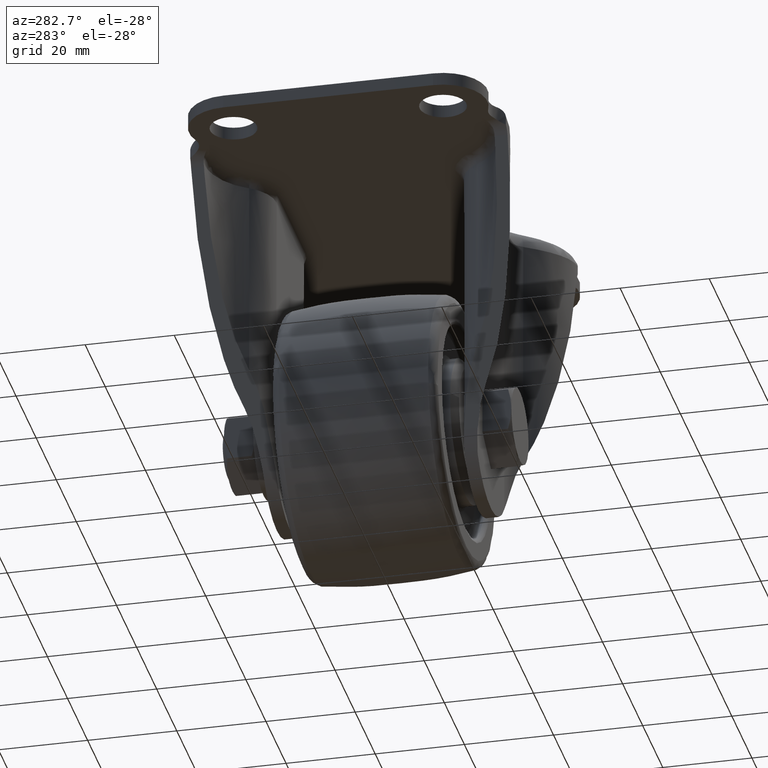
[diagram: clean part render]
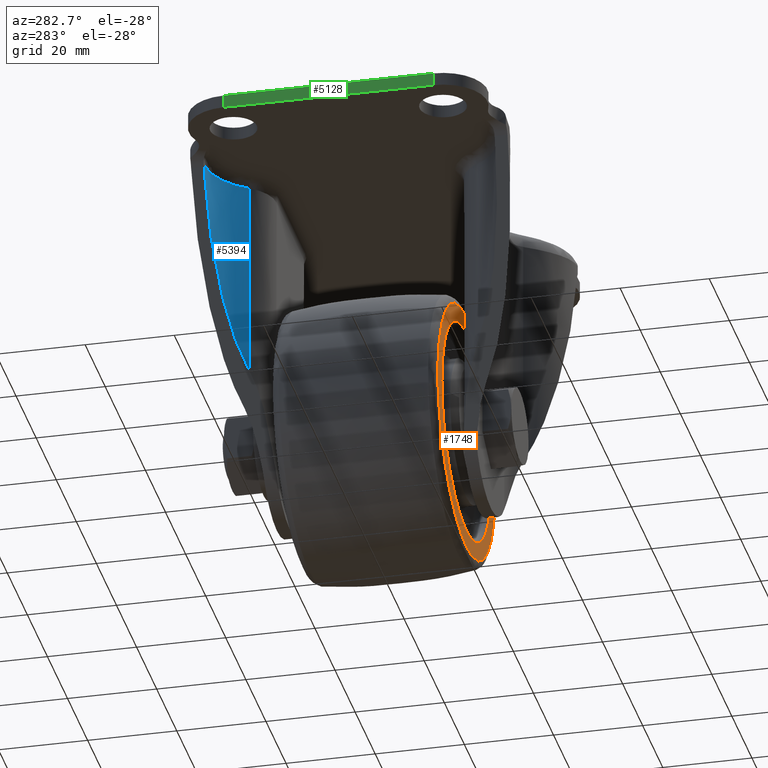
[diagram: same view with three faces highlighted in distinct colors, each labeled with its STEP entity id]
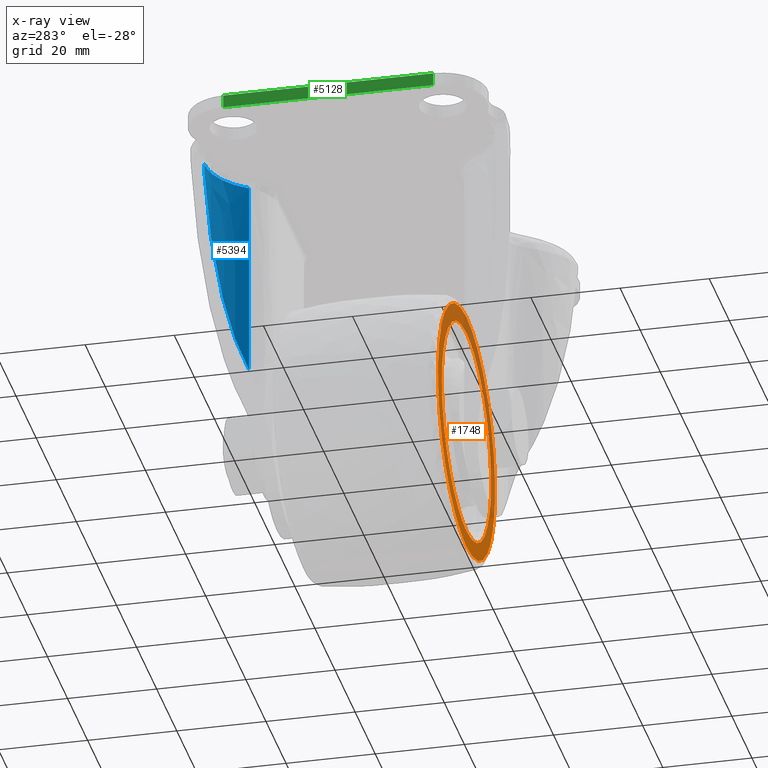
[diagram: x-ray of the same camera — body ghosted, the three highlighted faces saturated]
A machine part, auxiliary view with three faces highlighted in distinct colors.
The next image is the same camera in x-ray (body ghosted, the three faces saturated) — at least one of them is partly hidden behind the body in this view.
Their STEP definitions:

[orange] entity #1748 — the highlighted face is a freeform B-spline surface patch.
#1544=CARTESIAN_POINT('',(-28.250424796770758,-18.500000000000000,-62.708706460411733));
#1545=VERTEX_POINT('',#1544);
#1546=CARTESIAN_POINT('',(0.0,-18.500000000000000,-87.932034446078745));
#1547=VERTEX_POINT('',#1546);
#1548=CARTESIAN_POINT('',(-28.250424796770758,-18.500000000000004,-62.708706460411733));
#1549=CARTESIAN_POINT('',(-25.385508118814474,-18.500000000000007,-87.932034446493333));
#1550=CARTESIAN_POINT('',(0.0,-18.500000000000000,-87.932034446078745));
#1558=(BOUNDED_CURVE()B_SPLINE_CURVE(2,(#1548,#1549,#1550),.UNSPECIFIED.,.F.,.U.)B_SPLINE_CURVE_WITH_KNOTS((3,3),(0.769555763445048,1.0),.UNSPECIFIED.)CURVE()GEOMETRIC_REPRESENTATION_ITEM()RATIONAL_B_SPLINE_CURVE((0.957762333070122,0.730017783193646,1.0))REPRESENTATION_ITEM(''));
#1559=EDGE_CURVE('',#1545,#1547,#1558,.T.);
#1576=CARTESIAN_POINT('',(28.250424796770758,-18.500000000000000,-56.291225539588453));
#1577=VERTEX_POINT('',#1576);
#1591=CARTESIAN_POINT('',(0.0,-18.500000000000000,-87.932034446078745));
#1592=CARTESIAN_POINT('',(28.432068449337578,-18.500000000000000,-87.932034445708609));
#1593=CARTESIAN_POINT('',(28.432068452987622,-18.500000000000000,-59.499965999215377));
#1594=CARTESIAN_POINT('',(28.432068453194251,-18.500000000000000,-57.890454434599434));
#1595=CARTESIAN_POINT('',(28.250424796770758,-18.500000000000004,-56.291225539588453));
#1603=(BOUNDED_CURVE()B_SPLINE_CURVE(2,(#1591,#1592,#1593,#1594,#1595),.UNSPECIFIED.,.F.,.U.)B_SPLINE_CURVE_WITH_KNOTS((3,2,3),(0.0,0.250000000000000,0.269555763445048),.UNSPECIFIED.)CURVE()GEOMETRIC_REPRESENTATION_ITEM()RATIONAL_B_SPLINE_CURVE((1.0,0.707106781186548,1.0,0.977088997992902,0.957762333070122))REPRESENTATION_ITEM(''));
#1604=EDGE_CURVE('',#1547,#1577,#1603,.T.);
#1638=CARTESIAN_POINT('',(0.0,-18.500000000000000,-31.067897553921451));
#1639=VERTEX_POINT('',#1638);
#1640=CARTESIAN_POINT('',(0.0,-18.500000000000000,-31.067897553921451));
#1641=CARTESIAN_POINT('',(-28.432068449337578,-18.500000000000000,-31.067897554291605));
#1642=CARTESIAN_POINT('',(-28.432068452987622,-18.500000000000000,-59.499966000784838));
#1643=CARTESIAN_POINT('',(-28.432068453194248,-18.500000000000004,-61.109477565400773));
#1644=CARTESIAN_POINT('',(-28.250424796770758,-18.500000000000004,-62.708706460411733));
#1652=(BOUNDED_CURVE()B_SPLINE_CURVE(2,(#1640,#1641,#1642,#1643,#1644),.UNSPECIFIED.,.F.,.U.)B_SPLINE_CURVE_WITH_KNOTS((3,2,3),(0.500000000000000,0.750000000000000,0.769555763445048),.UNSPECIFIED.)CURVE()GEOMETRIC_REPRESENTATION_ITEM()RATIONAL_B_SPLINE_CURVE((1.0,0.707106781186548,1.0,0.977088997992902,0.957762333070122))REPRESENTATION_ITEM(''));
#1653=EDGE_CURVE('',#1639,#1545,#1652,.T.);
#1655=CARTESIAN_POINT('',(28.250424796770758,-18.500000000000004,-56.291225539588453));
#1656=CARTESIAN_POINT('',(25.385508118814442,-18.500000000000004,-31.067897553506871));
#1657=CARTESIAN_POINT('',(0.0,-18.500000000000000,-31.067897553921451));
#1665=(BOUNDED_CURVE()B_SPLINE_CURVE(2,(#1655,#1656,#1657),.UNSPECIFIED.,.F.,.U.)B_SPLINE_CURVE_WITH_KNOTS((3,3),(0.269555763445048,0.500000000000000),.UNSPECIFIED.)CURVE()GEOMETRIC_REPRESENTATION_ITEM()RATIONAL_B_SPLINE_CURVE((0.957762333070122,0.730017783193646,1.0))REPRESENTATION_ITEM(''));
#1666=EDGE_CURVE('',#1577,#1639,#1665,.T.);
#1675=CARTESIAN_POINT('',(-31.272420960481021,-18.500000000000000,-90.772397973628273));
#1676=CARTESIAN_POINT('',(-31.272420960481021,-18.500000000000000,-28.227532501156919));
#1677=CARTESIAN_POINT('',(31.272420960481011,-18.500000000000000,-90.772397973628273));
#1678=CARTESIAN_POINT('',(31.272420960481011,-18.500000000000000,-28.227532501156919));
#1679=B_SPLINE_SURFACE_WITH_KNOTS('',1,1,((#1675,#1677),(#1676,#1678)),.UNSPECIFIED.,.F.,.F.,.U.,(2,2),(2,2),(0.0,62.544865472471358),(0.0,62.544841920962028),.UNSPECIFIED.);
#1680=ORIENTED_EDGE('',*,*,#1604,.T.);
#1681=ORIENTED_EDGE('',*,*,#1666,.T.);
#1682=ORIENTED_EDGE('',*,*,#1653,.T.);
#1683=ORIENTED_EDGE('',*,*,#1559,.T.);
#1684=EDGE_LOOP('',(#1680,#1681,#1682,#1683));
#1685=FACE_OUTER_BOUND('',#1684,.T.);
#1686=CARTESIAN_POINT('',(0.0,-18.500000000000000,-34.999932000000200));
#1687=VERTEX_POINT('',#1686);
#1688=CARTESIAN_POINT('',(-24.500033999724689,-18.500000000000000,-59.499966000000100));
#1689=VERTEX_POINT('',#1688);
#1690=CARTESIAN_POINT('',(0.0,-18.500000000000000,-34.999932000000200));
#1691=CARTESIAN_POINT('',(-24.500033999862286,-18.499999999999996,-34.999932000000200));
#1692=CARTESIAN_POINT('',(-24.500033999724685,-18.500000000000004,-59.499966000000107));
#1700=(BOUNDED_CURVE()B_SPLINE_CURVE(2,(#1690,#1691,#1692),.UNSPECIFIED.,.F.,.U.)B_SPLINE_CURVE_WITH_KNOTS((3,3),(0.500000000000000,0.750000000000000),.UNSPECIFIED.)CURVE()GEOMETRIC_REPRESENTATION_ITEM()RATIONAL_B_SPLINE_CURVE((1.0,0.707106781186548,1.000000000000000))REPRESENTATION_ITEM(''));
#1701=EDGE_CURVE('',#1687,#1689,#1700,.T.);
#1702=ORIENTED_EDGE('',*,*,#1701,.F.);
#1703=CARTESIAN_POINT('',(24.500033999724689,-18.500000000000000,-59.499966000000100));
#1704=VERTEX_POINT('',#1703);
#1705=CARTESIAN_POINT('',(24.500033999724689,-18.500000000000000,-59.499966000000100));
#1706=CARTESIAN_POINT('',(24.500033999862289,-18.500000000000000,-34.999932000000207));
#1707=CARTESIAN_POINT('',(0.0,-18.500000000000000,-34.999932000000200));
#1715=(BOUNDED_CURVE()B_SPLINE_CURVE(2,(#1705,#1706,#1707),.UNSPECIFIED.,.F.,.U.)B_SPLINE_CURVE_WITH_KNOTS((3,3),(0.250000000000000,0.500000000000000),.UNSPECIFIED.)CURVE()GEOMETRIC_REPRESENTATION_ITEM()RATIONAL_B_SPLINE_CURVE((1.0,0.707106781186548,1.0))REPRESENTATION_ITEM(''));
#1716=EDGE_CURVE('',#1704,#1687,#1715,.T.);
#1717=ORIENTED_EDGE('',*,*,#1716,.F.);
#1718=CARTESIAN_POINT('',(0.0,-18.500000000000000,-83.999999999999986));
#1719=VERTEX_POINT('',#1718);
#1720=CARTESIAN_POINT('',(0.0,-18.500000000000000,-83.999999999999986));
#1721=CARTESIAN_POINT('',(24.500033999862289,-18.500000000000000,-83.999999999999986));
#1722=CARTESIAN_POINT('',(24.500033999724689,-18.500000000000000,-59.499966000000100));
#1730=(BOUNDED_CURVE()B_SPLINE_CURVE(2,(#1720,#1721,#1722),.UNSPECIFIED.,.F.,.U.)B_SPLINE_CURVE_WITH_KNOTS((3,3),(0.0,0.250000000000000),.UNSPECIFIED.)CURVE()GEOMETRIC_REPRESENTATION_ITEM()RATIONAL_B_SPLINE_CURVE((1.0,0.707106781186548,1.0))REPRESENTATION_ITEM(''));
#1731=EDGE_CURVE('',#1719,#1704,#1730,.T.);
#1732=ORIENTED_EDGE('',*,*,#1731,.F.);
#1733=CARTESIAN_POINT('',(-24.500033999724689,-18.500000000000000,-59.499966000000100));
#1734=CARTESIAN_POINT('',(-24.500033999862289,-18.500000000000000,-83.999999999999986));
#1735=CARTESIAN_POINT('',(0.0,-18.500000000000000,-83.999999999999986));
#1743=(BOUNDED_CURVE()B_SPLINE_CURVE(2,(#1733,#1734,#1735),.UNSPECIFIED.,.F.,.U.)B_SPLINE_CURVE_WITH_KNOTS((3,3),(0.750000000000000,1.0),.UNSPECIFIED.)CURVE()GEOMETRIC_REPRESENTATION_ITEM()RATIONAL_B_SPLINE_CURVE((1.0,0.707106781186548,1.0))REPRESENTATION_ITEM(''));
#1744=EDGE_CURVE('',#1689,#1719,#1743,.T.);
#1745=ORIENTED_EDGE('',*,*,#1744,.F.);
#1746=EDGE_LOOP('',(#1702,#1717,#1732,#1745));
#1747=FACE_BOUND('',#1746,.T.);
#1748=ADVANCED_FACE('',(#1685,#1747),#1679,.F.);

[blue] entity #5394 — the highlighted face is a freeform B-spline surface patch.
#5303=CARTESIAN_POINT('',(-34.125789845883162,32.597981468277013,-6.971071928917881));
#5304=VERTEX_POINT('',#5303);
#5305=CARTESIAN_POINT('',(-34.125789845883162,32.597981468277013,-4.900000000000000));
#5306=VERTEX_POINT('',#5305);
#5307=CARTESIAN_POINT('',(-34.125789845883162,32.597981468277013,-6.971071928917881));
#5308=CARTESIAN_POINT('',(-34.125789845883162,32.597981468277013,-4.900000000000000));
#5309=QUASI_UNIFORM_CURVE('',1,(#5307,#5308),.UNSPECIFIED.,.F.,.U.);
#5310=EDGE_CURVE('',#5304,#5306,#5309,.T.);
#5342=CARTESIAN_POINT('',(-34.549880843566037,32.585084753611433,-51.083953191051272));
#5343=CARTESIAN_POINT('',(-34.549880843566037,32.585084753611433,-3.745401170223715));
#5344=CARTESIAN_POINT('',(-25.248671874421458,32.998801464167222,-51.083953191051265));
#5345=CARTESIAN_POINT('',(-25.248671874421458,32.998801464167222,-3.745401170223716));
#5346=CARTESIAN_POINT('',(-20.701924901359206,24.874101976356130,-51.083953191051265));
#5347=CARTESIAN_POINT('',(-20.701924901359206,24.874101976356130,-3.745401170223715));
#5355=(BOUNDED_SURFACE()B_SPLINE_SURFACE(1,2,((#5342,#5344,#5346),(#5343,#5345,#5347)),.UNSPECIFIED.,.F.,.F.,.U.)B_SPLINE_SURFACE_WITH_KNOTS((2,2),(3,3),(0.0,47.338552020827549),(0.0,17.124012835305749),.UNSPECIFIED.)GEOMETRIC_REPRESENTATION_ITEM()RATIONAL_B_SPLINE_SURFACE(((1.0,0.847660493008811,0.991694648500843),(1.0,0.847660493008811,0.991694648500843)))REPRESENTATION_ITEM('')SURFACE());
#5356=CARTESIAN_POINT('',(-21.079916321555249,25.512244878611600,-49.957515308342700));
#5357=VERTEX_POINT('',#5356);
#5358=CARTESIAN_POINT('',(-21.079916321555249,25.512244878611600,-4.900000000000000));
#5359=VERTEX_POINT('',#5358);
#5360=CARTESIAN_POINT('',(-21.079916321555249,25.512244878611600,-49.957515308342700));
#5361=CARTESIAN_POINT('',(-21.079916321555249,25.512244878611600,-4.900000000000000));
#5362=QUASI_UNIFORM_CURVE('',1,(#5360,#5361),.UNSPECIFIED.,.F.,.U.);
#5363=EDGE_CURVE('',#5357,#5359,#5362,.T.);
#5364=ORIENTED_EDGE('',*,*,#5363,.T.);
#5365=CARTESIAN_POINT('',(-21.079916321555238,25.512244878611600,-4.900000000000000));
#5366=CARTESIAN_POINT('',(-25.602880820619248,32.737353525791043,-4.899999999999999));
#5367=CARTESIAN_POINT('',(-34.125789845883162,32.597981468277027,-4.900000000000000));
#5375=(BOUNDED_CURVE()B_SPLINE_CURVE(2,(#5365,#5366,#5367),.UNSPECIFIED.,.F.,.U.)CURVE()GEOMETRIC_REPRESENTATION_ITEM()QUASI_UNIFORM_CURVE()RATIONAL_B_SPLINE_CURVE((1.0,0.870827890094977,1.0))REPRESENTATION_ITEM(''));
#5376=EDGE_CURVE('',#5359,#5306,#5375,.T.);
#5377=ORIENTED_EDGE('',*,*,#5376,.T.);
#5378=ORIENTED_EDGE('',*,*,#5310,.F.);
#5379=CARTESIAN_POINT('',(-34.125789845883162,32.597981468277013,-6.971071928917881));
#5380=CARTESIAN_POINT('',(-25.602880820619653,32.737353525791669,-35.054246701329504));
#5381=CARTESIAN_POINT('',(-21.079916321555260,25.512244878611629,-49.957515308342707));
#5389=(BOUNDED_CURVE()B_SPLINE_CURVE(2,(#5379,#5380,#5381),.UNSPECIFIED.,.F.,.U.)CURVE()GEOMETRIC_REPRESENTATION_ITEM()QUASI_UNIFORM_CURVE()RATIONAL_B_SPLINE_CURVE((1.0,0.870827890094960,1.0))REPRESENTATION_ITEM(''));
#5390=EDGE_CURVE('',#5304,#5357,#5389,.T.);
#5391=ORIENTED_EDGE('',*,*,#5390,.T.);
#5392=EDGE_LOOP('',(#5364,#5377,#5378,#5391));
#5393=FACE_OUTER_BOUND('',#5392,.T.);
#5394=ADVANCED_FACE('',(#5393),#5355,.F.);

[green] entity #5128 — the highlighted face is a freeform B-spline surface patch.
#5093=CARTESIAN_POINT('',(-55.499905000000098,-25.847649908904891,0.144854994379237));
#5094=CARTESIAN_POINT('',(-55.499905000000098,-25.847649908904891,-3.044855072163299));
#5095=CARTESIAN_POINT('',(-55.499905000000098,25.847651169543120,0.144854994379237));
#5096=CARTESIAN_POINT('',(-55.499905000000098,25.847651169543120,-3.044855072163299));
#5097=B_SPLINE_SURFACE_WITH_KNOTS('',1,1,((#5093,#5095),(#5094,#5096)),.UNSPECIFIED.,.F.,.F.,.U.,(2,2),(2,2),(0.0,3.189710066542536),(0.0,51.695301078448011),.UNSPECIFIED.);
#5098=CARTESIAN_POINT('',(-55.499905000000012,-23.500000000000000,-2.900000000000000));
#5099=VERTEX_POINT('',#5098);
#5100=CARTESIAN_POINT('',(-55.499905000000098,23.500000000000000,-2.900000000000000));
#5101=VERTEX_POINT('',#5100);
#5102=CARTESIAN_POINT('',(-55.499905000000012,-23.500000000000000,-2.900000000000000));
#5103=CARTESIAN_POINT('',(-55.499905000000098,23.500000000000000,-2.900000000000000));
#5104=QUASI_UNIFORM_CURVE('',1,(#5102,#5103),.UNSPECIFIED.,.F.,.U.);
#5105=EDGE_CURVE('',#5099,#5101,#5104,.T.);
#5106=ORIENTED_EDGE('',*,*,#5105,.F.);
#5107=CARTESIAN_POINT('',(-55.499905000000098,-23.500000000000000,0.0));
#5108=VERTEX_POINT('',#5107);
#5109=CARTESIAN_POINT('',(-55.499905000000012,-23.500000000000000,-2.900000000000000));
#5110=CARTESIAN_POINT('',(-55.499905000000098,-23.500000000000000,0.0));
#5111=QUASI_UNIFORM_CURVE('',1,(#5109,#5110),.UNSPECIFIED.,.F.,.U.);
#5112=EDGE_CURVE('',#5099,#5108,#5111,.T.);
#5113=ORIENTED_EDGE('',*,*,#5112,.T.);
#5114=CARTESIAN_POINT('',(-55.499905000000098,23.500000000000000,0.0));
#5115=VERTEX_POINT('',#5114);
#5116=CARTESIAN_POINT('',(-55.499905000000098,-23.500000000000000,0.0));
#5117=CARTESIAN_POINT('',(-55.499905000000098,23.500000000000000,0.0));
#5118=QUASI_UNIFORM_CURVE('',1,(#5116,#5117),.UNSPECIFIED.,.F.,.U.);
#5119=EDGE_CURVE('',#5108,#5115,#5118,.T.);
#5120=ORIENTED_EDGE('',*,*,#5119,.T.);
#5121=CARTESIAN_POINT('',(-55.499905000000098,23.500000000000000,-2.900000000000000));
#5122=CARTESIAN_POINT('',(-55.499905000000098,23.500000000000000,0.0));
#5123=QUASI_UNIFORM_CURVE('',1,(#5121,#5122),.UNSPECIFIED.,.F.,.U.);
#5124=EDGE_CURVE('',#5101,#5115,#5123,.T.);
#5125=ORIENTED_EDGE('',*,*,#5124,.F.);
#5126=EDGE_LOOP('',(#5106,#5113,#5120,#5125));
#5127=FACE_OUTER_BOUND('',#5126,.T.);
#5128=ADVANCED_FACE('',(#5127),#5097,.F.);